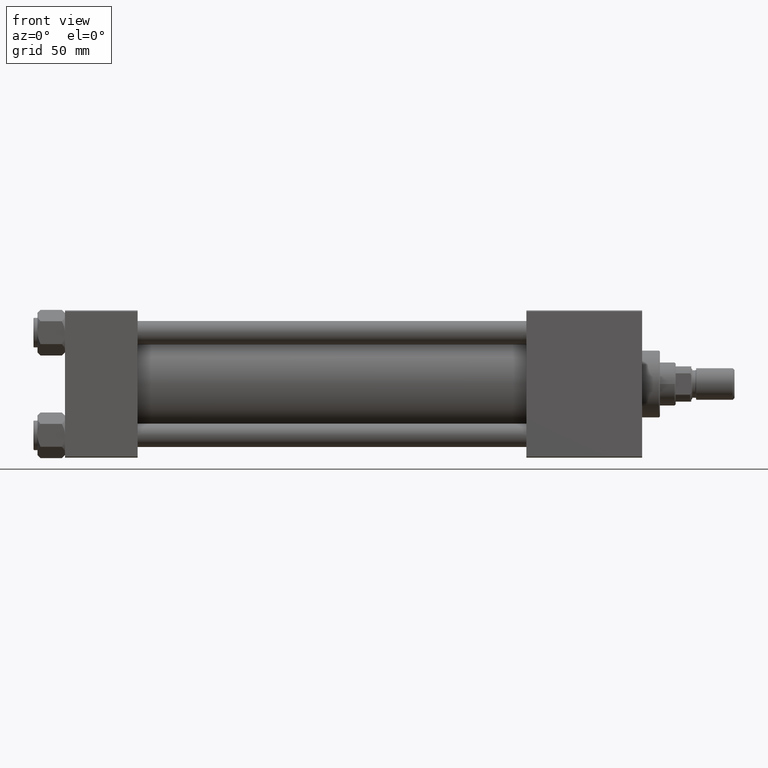
[diagram: clean part render]
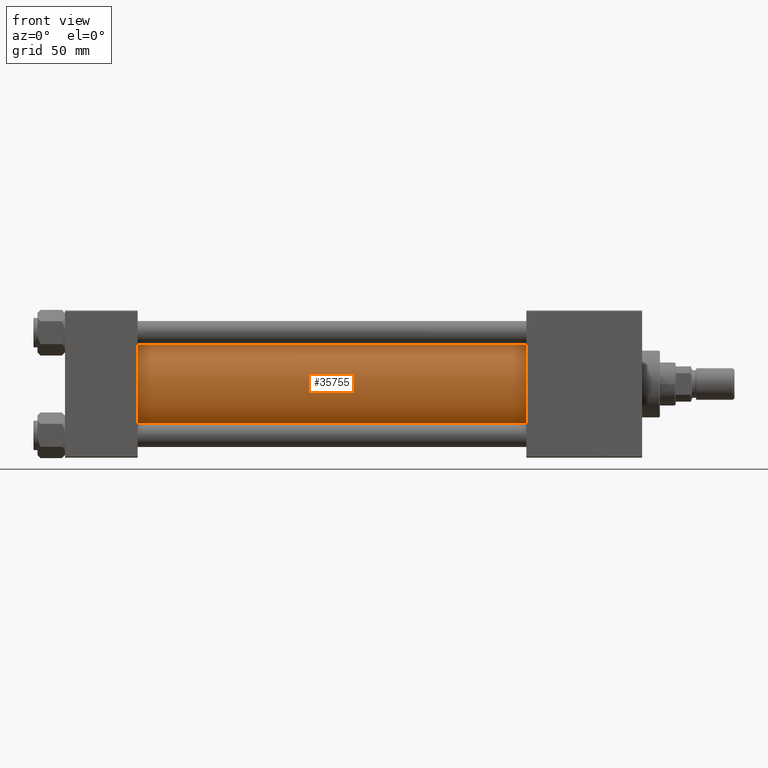
[diagram: same view with one face highlighted and labeled with its STEP entity id]
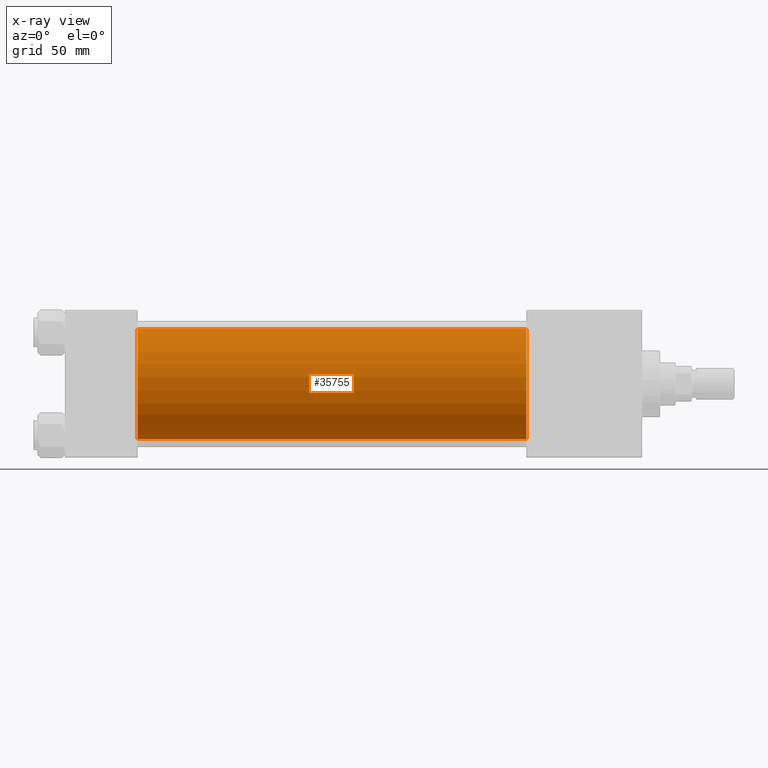
[diagram: x-ray of the same camera — body ghosted, the highlighted face saturated]
A machine part, front view. The second image highlights one B-rep face of the part: STEP entity #35755.
The next image is the same camera in x-ray: the body ghosted, the highlighted face saturated — about 0% of this face is hidden behind the body in this view.
In plain terms, the highlighted cylindrical surface (partial cylindrical patch) has radius 28 mm, axis along (-1, -0, -0).
Its self-contained STEP definition (entity closure, byte-faithful):
#1005 = CARTESIAN_POINT ( 'NONE',  ( 235.0000000000000284, 8.269258236473784371E-16, -28.00000000000000000 ) ) ;
#1612 = DIRECTION ( 'NONE',  ( 1.000000000000000000, 0.000000000000000000, 0.000000000000000000 ) ) ;
#1725 = ORIENTED_EDGE ( 'NONE', *, *, #31013, .F. ) ;
#4328 = EDGE_LOOP ( 'NONE', ( #1725, #42132, #29374, #25163 ) ) ;
#4667 = CARTESIAN_POINT ( 'NONE',  ( 37.00000000000000711, -2.602085213965210642E-15, 0.000000000000000000 ) ) ;
#5054 = AXIS2_PLACEMENT_3D ( 'NONE', #4667, #12893, #9286 ) ;
#5248 = VECTOR ( 'NONE', #26967, 1000.000000000000000 ) ;
#8741 = EDGE_CURVE ( 'NONE', #32208, #15024, #37877, .T. ) ;
#9286 = DIRECTION ( 'NONE',  ( 0.000000000000000000, 0.000000000000000000, 1.000000000000000000 ) ) ;
#10355 = CARTESIAN_POINT ( 'NONE',  ( 235.0000000000000284, -2.602085213965210642E-15, 28.00000000000000000 ) ) ;
#10529 = CARTESIAN_POINT ( 'NONE',  ( 235.0000000000000284, -2.602085213965210642E-15, 28.00000000000000000 ) ) ;
#12893 = DIRECTION ( 'NONE',  ( 1.000000000000000000, -0.000000000000000000, 0.000000000000000000 ) ) ;
#15024 = VERTEX_POINT ( 'NONE', #18917 ) ;
#18917 = CARTESIAN_POINT ( 'NONE',  ( 37.00000000000000711, 8.269258236473784371E-16, -28.00000000000000000 ) ) ;
#19853 = CYLINDRICAL_SURFACE ( 'NONE', #38179, 28.00000000000000000 ) ;
#20456 = VECTOR ( 'NONE', #33143, 1000.000000000000000 ) ;
#24695 = CARTESIAN_POINT ( 'NONE',  ( 235.0000000000000284, 8.269258236473784371E-16, -28.00000000000000000 ) ) ;
#25163 = ORIENTED_EDGE ( 'NONE', *, *, #8741, .T. ) ;
#26045 = EDGE_CURVE ( 'NONE', #33740, #37812, #49810, .T. ) ;
#26967 = DIRECTION ( 'NONE',  ( -1.000000000000000000, -0.000000000000000000, -0.000000000000000000 ) ) ;
#29374 = ORIENTED_EDGE ( 'NONE', *, *, #32068, .T. ) ;
#31013 = EDGE_CURVE ( 'NONE', #37812, #15024, #36492, .T. ) ;
#31323 = CARTESIAN_POINT ( 'NONE',  ( 37.00000000000000711, -2.602085213965210642E-15, 28.00000000000000000 ) ) ;
#32068 = EDGE_CURVE ( 'NONE', #33740, #32208, #42634, .T. ) ;
#32208 = VERTEX_POINT ( 'NONE', #31323 ) ;
#33143 = DIRECTION ( 'NONE',  ( -1.000000000000000000, -0.000000000000000000, -0.000000000000000000 ) ) ;
#33740 = VERTEX_POINT ( 'NONE', #10355 ) ;
#35755 = ADVANCED_FACE ( 'NONE', ( #39880 ), #19853, .T. ) ;
#36492 = LINE ( 'NONE', #24695, #20456 ) ;
#37812 = VERTEX_POINT ( 'NONE', #1005 ) ;
#37877 = CIRCLE ( 'NONE', #5054, 28.00000000000000000 ) ;
#38179 = AXIS2_PLACEMENT_3D ( 'NONE', #43480, #48095, #43991 ) ;
#39880 = FACE_OUTER_BOUND ( 'NONE', #4328, .T. ) ;
#42132 = ORIENTED_EDGE ( 'NONE', *, *, #26045, .F. ) ;
#42634 = LINE ( 'NONE', #10529, #5248 ) ;
#43259 = AXIS2_PLACEMENT_3D ( 'NONE', #44522, #1612, #50832 ) ;
#43480 = CARTESIAN_POINT ( 'NONE',  ( 235.0000000000000284, -2.602085213965210642E-15, 0.000000000000000000 ) ) ;
#43991 = DIRECTION ( 'NONE',  ( 0.000000000000000000, 0.000000000000000000, 1.000000000000000000 ) ) ;
#44522 = CARTESIAN_POINT ( 'NONE',  ( 235.0000000000000284, -2.602085213965210642E-15, 0.000000000000000000 ) ) ;
#48095 = DIRECTION ( 'NONE',  ( -1.000000000000000000, -0.000000000000000000, -0.000000000000000000 ) ) ;
#49810 = CIRCLE ( 'NONE', #43259, 28.00000000000000000 ) ;
#50832 = DIRECTION ( 'NONE',  ( 0.000000000000000000, 0.000000000000000000, -1.000000000000000000 ) ) ;